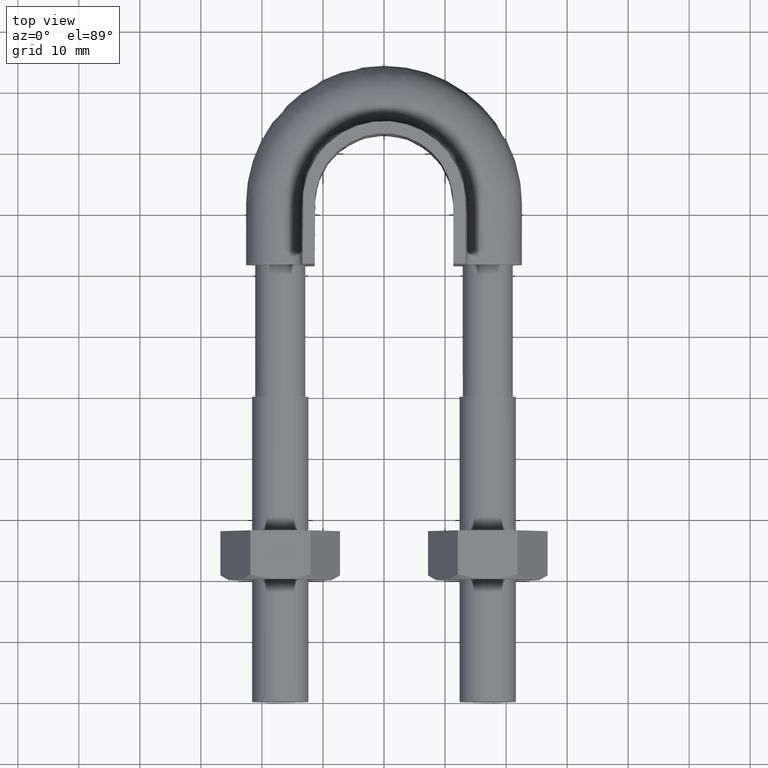
[diagram: clean part render]
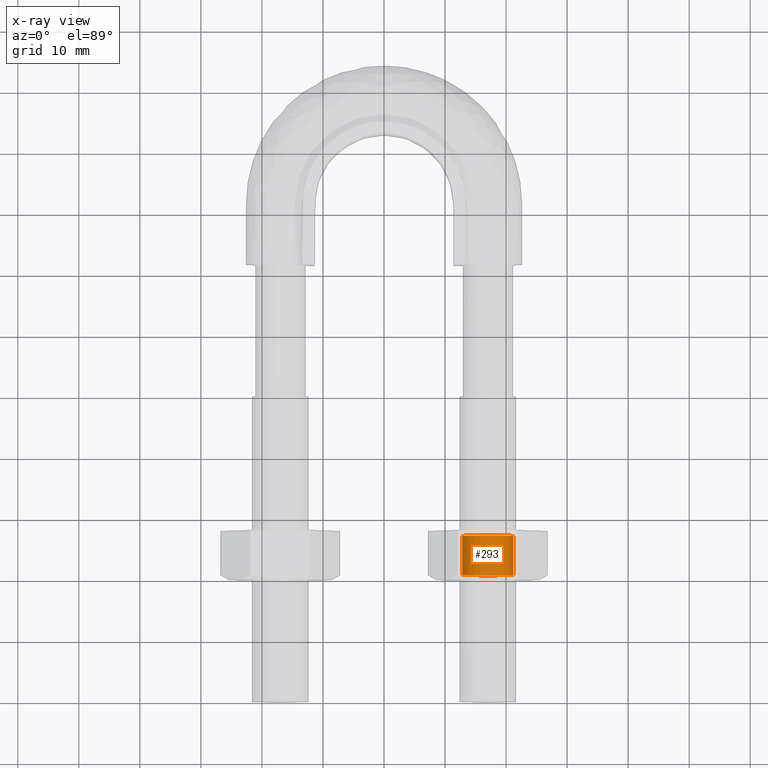
[diagram: x-ray — body ghosted, one internal face saturated and labeled with its STEP entity id]
A machine part, top view, then the same camera in x-ray: the body is ghosted and one INTERNAL B-rep face — a face not visible from any outside direction — is saturated and labeled: STEP entity #293.
In plain terms, the highlighted cylindrical surface (bore or boss wall) has radius 4.188 mm, axis along (-0, -1, 0).
Its self-contained STEP definition (entity closure, byte-faithful):
#293 = ADVANCED_FACE( '', ( #462, #463 ), #464, .F. );
#462 = FACE_OUTER_BOUND( '', #1541, .T. );
#463 = FACE_OUTER_BOUND( '', #1542, .T. );
#464 = CYLINDRICAL_SURFACE( '', #1543, 4.18800000000000 );
#1541 = EDGE_LOOP( '', ( #2077 ) );
#1542 = EDGE_LOOP( '', ( #2078 ) );
#1543 = AXIS2_PLACEMENT_3D( '', #2079, #2080, #2081 );
#2077 = ORIENTED_EDGE( '', *, *, #2238, .T. );
#2078 = ORIENTED_EDGE( '', *, *, #2237, .F. );
#2079 = CARTESIAN_POINT( '', ( 17.0000000000000, 27.9999999999961, -9.89822373370641E-015 ) );
#2080 = DIRECTION( '', ( -2.44921270764475E-016, -1.00000000000000, 3.06151588455594E-016 ) );
#2081 = DIRECTION( '', ( 0.866025403784227, -3.65183836637060E-016, -0.500000000000367 ) );
#2237 = EDGE_CURVE( '', #2485, #2485, #2486, .T. );
#2238 = EDGE_CURVE( '', #2487, #2487, #2488, .T. );
#2485 = VERTEX_POINT( '', #3105 );
#2486 = CIRCLE( '', #3106, 4.18800000000000 );
#2487 = VERTEX_POINT( '', #3107 );
#2488 = CIRCLE( '', #3108, 4.18800000000000 );
#3105 = CARTESIAN_POINT( '', ( 20.6269143910484, 20.8119999999961, -2.09400000000155 ) );
#3106 = AXIS2_PLACEMENT_3D( '', #3337, #3338, #3339 );
#3107 = CARTESIAN_POINT( '', ( 20.6269143910484, 27.1879999999961, -2.09400000000155 ) );
#3108 = AXIS2_PLACEMENT_3D( '', #3340, #3341, #3342 );
#3337 = CARTESIAN_POINT( '', ( 17.0000000000000, 20.8119999999961, -7.69760611588760E-015 ) );
#3338 = DIRECTION( '', ( 2.44921270764475E-016, 1.00000000000000, -3.06151588455594E-016 ) );
#3339 = DIRECTION( '', ( 0.866025403784227, -3.65183836637060E-016, -0.500000000000367 ) );
#3340 = CARTESIAN_POINT( '', ( 17.0000000000000, 27.1879999999961, -9.64962864388047E-015 ) );
#3341 = DIRECTION( '', ( 2.44921270764475E-016, 1.00000000000000, -3.06151588455594E-016 ) );
#3342 = DIRECTION( '', ( 0.866025403784227, -3.65183836637060E-016, -0.500000000000367 ) );